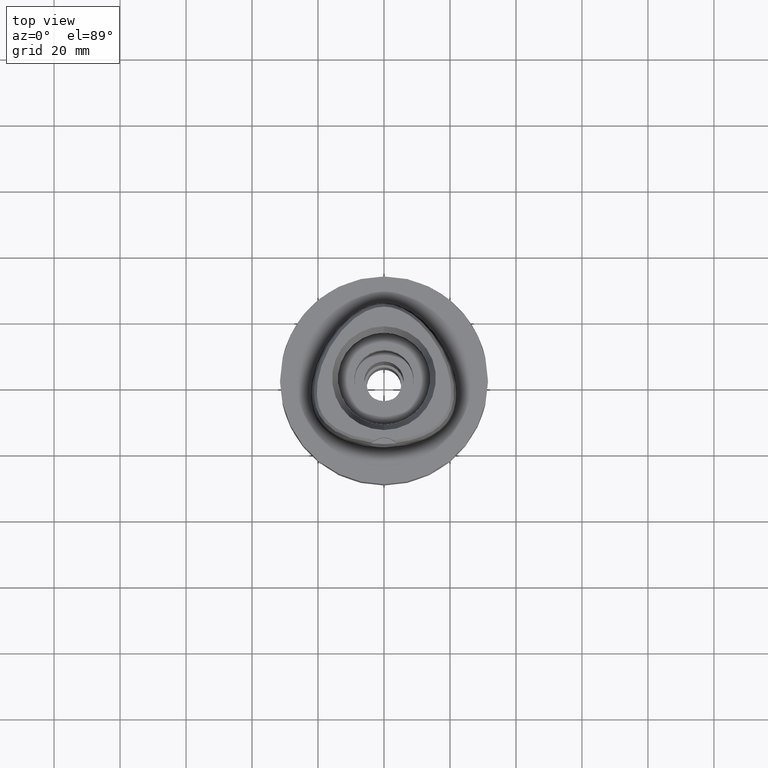
[diagram: clean part render]
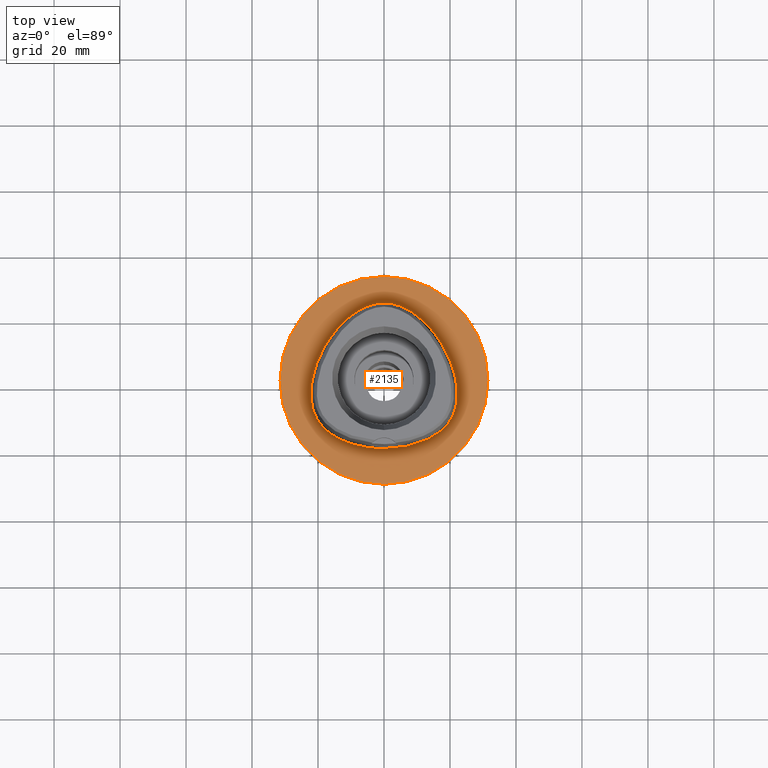
[diagram: same view with one face highlighted and labeled with its STEP entity id]
A machine part, top view. The second image highlights one B-rep face of the part: STEP entity #2135.
In plain terms, the highlighted planar face has unit normal (0, 0, -1).
Its self-contained STEP definition (entity closure, byte-faithful):
#50 = EDGE_CURVE ( 'NONE', #4261, #2767, #4413, .T. ) ;
#120 = CARTESIAN_POINT ( 'NONE',  ( 20.34961798556517820, -11.74885742187152360, 2.743031496388326218E-14 ) ) ;
#132 = ORIENTED_EDGE ( 'NONE', *, *, #1679, .F. ) ;
#163 = AXIS2_PLACEMENT_3D ( 'NONE', #2989, #4859, #4075 ) ;
#175 = CARTESIAN_POINT ( 'NONE',  ( 18.56841065142019787, -14.16937988280710137, 2.743031496388326218E-14 ) ) ;
#264 = FACE_OUTER_BOUND ( 'NONE', #4520, .T. ) ;
#374 = CARTESIAN_POINT ( 'NONE',  ( -21.55524829466141057, -8.996025400901972446, -1.437749666988608760E-06 ) ) ;
#432 = EDGE_CURVE ( 'NONE', #4591, #2996, #664, .T. ) ;
#559 = CARTESIAN_POINT ( 'NONE',  ( 20.93173252212270086, -10.60431640624807414, 2.743031496388326218E-14 ) ) ;
#564 = CARTESIAN_POINT ( 'NONE',  ( 0.0000000000000000000, 0.0000000000000000000, 0.0000000000000000000 ) ) ;
#591 = CARTESIAN_POINT ( 'NONE',  ( -5.544119042799000852E-12, -20.67499999999999716, 7.264559324463998182E-14 ) ) ;
#595 = CARTESIAN_POINT ( 'NONE',  ( -20.93173255500279595, -10.60431642089638693, -1.437749666988608760E-06 ) ) ;
#664 = B_SPLINE_CURVE_WITH_KNOTS ( 'NONE', 3,
 ( #4256, #3469, #2686, #3923, #3566, #796, #3542, #4362, #851, #2410, #1899, #5024, #374, #595, #1509, #1947, #3491, #1558, #3082, #4636, #3901, #2715, #771 ),
 .UNSPECIFIED., .F., .F.,
 ( 4, 1, 1, 1, 1, 1, 1, 1, 1, 1, 1, 1, 1, 1, 1, 1, 1, 1, 1, 1, 4 ),
 ( 0.0000000000000000000, 0.04166666666724999635, 0.08333333333387001052, 0.1250000000004999889, 0.1666666666672000086, 0.2500000000004000134, 0.3333333333335999904, 0.4166666666670000296, 0.5000000000001999512, 0.5416666666668999985, 0.5833333333333999837, 0.6250000000001000311, 0.6458333333333999837, 0.6666666666667000474, 0.6875000000000000000, 0.7083333333333000637, 0.7500000000000000000, 0.7916666666666000163, 0.8333333333332000326, 0.9166666666664999852, 1.000000000000000000 ),
 .UNSPECIFIED. ) ;
#688 = EDGE_LOOP ( 'NONE', ( #996, #132 ) ) ;
#771 = CARTESIAN_POINT ( 'NONE',  ( -5.544119042799000852E-12, -20.67499999999999716, 7.264559324463998182E-14 ) ) ;
#796 = CARTESIAN_POINT ( 'NONE',  ( -10.74572893383582439, 19.17433596518052497, -1.437749666988608760E-06 ) ) ;
#851 = CARTESIAN_POINT ( 'NONE',  ( -20.74942744279724494, 4.657187512255438477, -1.437749666988608760E-06 ) ) ;
#959 = CARTESIAN_POINT ( 'NONE',  ( 21.55524826009692063, -8.996025390625421281, 2.743031496388326218E-14 ) ) ;
#983 = CARTESIAN_POINT ( 'NONE',  ( 14.67337964420000951, -17.21410156249884338, 2.743031496388326218E-14 ) ) ;
#996 = ORIENTED_EDGE ( 'NONE', *, *, #432, .F. ) ;
#1305 = CARTESIAN_POINT ( 'NONE',  ( 20.74942740880135617, 4.657187499999767333, 2.743031496388326218E-14 ) ) ;
#1308 = AXIS2_PLACEMENT_3D ( 'NONE', #564, #2542, #3293 ) ;
#1361 = CARTESIAN_POINT ( 'NONE',  ( 19.64947365863980266, -12.82525390625480810, 2.743031496388326218E-14 ) ) ;
#1478 = AXIS2_PLACEMENT_3D ( 'NONE', #4585, #3396, #3830 ) ;
#1509 = CARTESIAN_POINT ( 'NONE',  ( -20.34961801675260418, -11.74885743987403508, -1.437749666988608760E-06 ) ) ;
#1558 = CARTESIAN_POINT ( 'NONE',  ( -16.95889174824362300, -15.67838870024704967, -1.437749666988608760E-06 ) ) ;
#1679 = EDGE_CURVE ( 'NONE', #2996, #4591, #3664, .T. ) ;
#1899 = CARTESIAN_POINT ( 'NONE',  ( -22.24453911460249955, -4.100468749788434231, -1.437749666988608760E-06 ) ) ;
#1947 = CARTESIAN_POINT ( 'NONE',  ( -19.64947368776163472, -12.82525392741661818, -1.437749666988608760E-06 ) ) ;
#2100 = CARTESIAN_POINT ( 'NONE',  ( 11.23259756728057468, -18.89324218749557005, 2.743031496388326218E-14 ) ) ;
#2116 = PLANE ( 'NONE',  #163 ) ;
#2124 = CARTESIAN_POINT ( 'NONE',  ( 3.796779495581999851E-11, 23.47499999999000053, 6.972200594645999482E-14 ) ) ;
#2135 = ADVANCED_FACE ( 'NONE', ( #264, #4100 ), #2116, .F. ) ;
#2410 = CARTESIAN_POINT ( 'NONE',  ( -21.97832651345903088, -0.2810937437117549953, -1.437749666988608760E-06 ) ) ;
#2416 = CARTESIAN_POINT ( 'NONE',  ( 0.0000000000000000000, 31.50000000000000000, 0.0000000000000000000 ) ) ;
#2460 = CARTESIAN_POINT ( 'NONE',  ( 10.74572891058480550, 19.17433593750077847, 2.743031496388326218E-14 ) ) ;
#2494 = ORIENTED_EDGE ( 'NONE', *, *, #2669, .F. ) ;
#2538 = CARTESIAN_POINT ( 'NONE',  ( 18.06826688526363611, 10.43171875000037119, 2.743031496388326218E-14 ) ) ;
#2542 = DIRECTION ( 'NONE',  ( 0.0000000000000000000, 0.0000000000000000000, -1.000000000000000000 ) ) ;
#2567 = CARTESIAN_POINT ( 'NONE',  ( 0.8548392423474051594, 23.47500000000270504, 2.743031496388326218E-14 ) ) ;
#2625 = CIRCLE ( 'NONE', #1478, 31.50000000000000000 ) ;
#2669 = EDGE_CURVE ( 'NONE', #2767, #4261, #2625, .T. ) ;
#2686 = CARTESIAN_POINT ( 'NONE',  ( -2.564517734345411082, 23.29328128539626164, -1.437749666988608760E-06 ) ) ;
#2715 = CARTESIAN_POINT ( 'NONE',  ( -2.113823675201001784, -20.67500003594079061, -1.437749666988608760E-06 ) ) ;
#2756 = ORIENTED_EDGE ( 'NONE', *, *, #50, .F. ) ;
#2767 = VERTEX_POINT ( 'NONE', #3179 ) ;
#2844 = CARTESIAN_POINT ( 'NONE',  ( 2.564517726975846568, 23.29328124999400629, 2.743031496388326218E-14 ) ) ;
#2905 = CARTESIAN_POINT ( 'NONE',  ( 21.97832647786634297, -0.2810937499999570099, 2.743031496388326218E-14 ) ) ;
#2924 = CARTESIAN_POINT ( 'NONE',  ( 5.098437017284000561, 22.52602539062211306, 2.743031496388326218E-14 ) ) ;
#2944 = CARTESIAN_POINT ( 'NONE',  ( 6.341471019211279092, -20.29812500000267406, 2.743031496388326218E-14 ) ) ;
#2989 = CARTESIAN_POINT ( 'NONE',  ( 0.0000000000000000000, 0.0000000000000000000, 0.0000000000000000000 ) ) ;
#2996 = VERTEX_POINT ( 'NONE', #591 ) ;
#3082 = CARTESIAN_POINT ( 'NONE',  ( -14.67337966204096489, -17.21410159383035676, -1.437749666988608760E-06 ) ) ;
#3179 = CARTESIAN_POINT ( 'NONE',  ( 0.0000000000000000000, -31.50000000000000000, 0.0000000000000000000 ) ) ;
#3289 = CARTESIAN_POINT ( 'NONE',  ( -5.544119042799000852E-12, -20.67499999999999716, 7.264559324463998182E-14 ) ) ;
#3293 = DIRECTION ( 'NONE',  ( 0.0000000000000000000, 1.000000000000000000, 0.0000000000000000000 ) ) ;
#3314 = CARTESIAN_POINT ( 'NONE',  ( 22.24453907854422852, -4.100468750000057838, 2.743031496388326218E-14 ) ) ;
#3396 = DIRECTION ( 'NONE',  ( 0.0000000000000000000, 0.0000000000000000000, -1.000000000000000000 ) ) ;
#3469 = CARTESIAN_POINT ( 'NONE',  ( -0.8548392448530371945, 23.47500003594240425, -1.437749666988608760E-06 ) ) ;
#3491 = CARTESIAN_POINT ( 'NONE',  ( -18.56841067760564101, -14.16937990761454991, -1.437749666988608760E-06 ) ) ;
#3542 = CARTESIAN_POINT ( 'NONE',  ( -14.40795641719663500, 15.64093752332035692, -1.437749666988608760E-06 ) ) ;
#3566 = CARTESIAN_POINT ( 'NONE',  ( -7.571159452560623393, 21.31457034361661229, -1.437749666988608760E-06 ) ) ;
#3619 = CARTESIAN_POINT ( 'NONE',  ( 2.113823673067774855, -20.67499999999642313, 2.743031496388326534E-14 ) ) ;
#3647 = CARTESIAN_POINT ( 'NONE',  ( 16.95889172594134564, -15.67838867187557028, 2.743031496388326218E-14 ) ) ;
#3664 = B_SPLINE_CURVE_WITH_KNOTS ( 'NONE', 3,
 ( #3289, #3619, #2944, #2100, #983, #3647, #175, #1361, #120, #559, #959, #4887, #3314, #2905, #1305, #2538, #4836, #2460, #3672, #2924, #2844, #2567, #2124 ),
 .UNSPECIFIED., .F., .F.,
 ( 4, 1, 1, 1, 1, 1, 1, 1, 1, 1, 1, 1, 1, 1, 1, 1, 1, 1, 1, 1, 4 ),
 ( 0.0000000000000000000, 0.08333333333337000770, 0.1666666666667000196, 0.2083333333333000081, 0.2500000000000000000, 0.2916666666666999919, 0.3124999999998999689, 0.3333333333332000326, 0.3541666666666000163, 0.3749999999998999689, 0.4166666666666000163, 0.4583333333332000326, 0.4999999999998999689, 0.5833333333331000015, 0.6666666666664999852, 0.7499999999998000488, 0.8333333333329999704, 0.8749999999997000177, 0.9166666666664000651, 0.9583333333329999704, 1.000000000000000000 ),
 .UNSPECIFIED. ) ;
#3672 = CARTESIAN_POINT ( 'NONE',  ( 7.571159434350420270, 21.31457031249671630, 2.743031496388326218E-14 ) ) ;
#3830 = DIRECTION ( 'NONE',  ( 0.0000000000000000000, -1.000000000000000000, 0.0000000000000000000 ) ) ;
#3901 = CARTESIAN_POINT ( 'NONE',  ( -6.341471025598161226, -20.29812503558362025, -1.437749666988608760E-06 ) ) ;
#3923 = CARTESIAN_POINT ( 'NONE',  ( -5.098437030699603412, 22.52602542414164688, -1.437749666988608760E-06 ) ) ;
#4075 = DIRECTION ( 'NONE',  ( 0.0000000000000000000, -1.000000000000000000, 0.0000000000000000000 ) ) ;
#4079 = CARTESIAN_POINT ( 'NONE',  ( 3.796779495581999851E-11, 23.47499999999000053, 6.972200594645999482E-14 ) ) ;
#4100 = FACE_BOUND ( 'NONE', #688, .T. ) ;
#4256 = CARTESIAN_POINT ( 'NONE',  ( 3.796779495581999851E-11, 23.47499999999000053, 6.972200594645999482E-14 ) ) ;
#4261 = VERTEX_POINT ( 'NONE', #2416 ) ;
#4362 = CARTESIAN_POINT ( 'NONE',  ( -18.06826691654995898, 10.43171876806943210, -1.437749666988608760E-06 ) ) ;
#4413 = CIRCLE ( 'NONE', #1308, 31.50000000000000000 ) ;
#4520 = EDGE_LOOP ( 'NONE', ( #2756, #2494 ) ) ;
#4585 = CARTESIAN_POINT ( 'NONE',  ( 0.0000000000000000000, 0.0000000000000000000, 0.0000000000000000000 ) ) ;
#4591 = VERTEX_POINT ( 'NONE', #4079 ) ;
#4636 = CARTESIAN_POINT ( 'NONE',  ( -11.23259757962230765, -18.89324222147040189, -1.437749666988608760E-06 ) ) ;
#4836 = CARTESIAN_POINT ( 'NONE',  ( 14.40795638957730418, 15.64093750000672678, 2.743031496388326218E-14 ) ) ;
#4859 = DIRECTION ( 'NONE',  ( 0.0000000000000000000, 0.0000000000000000000, -1.000000000000000000 ) ) ;
#4887 = CARTESIAN_POINT ( 'NONE',  ( 22.05732874322441006, -6.847636718749498641, 2.743031496388326218E-14 ) ) ;
#5024 = CARTESIAN_POINT ( 'NONE',  ( -22.05732877894942945, -6.847636723885096366, -1.437749666988608760E-06 ) ) ;